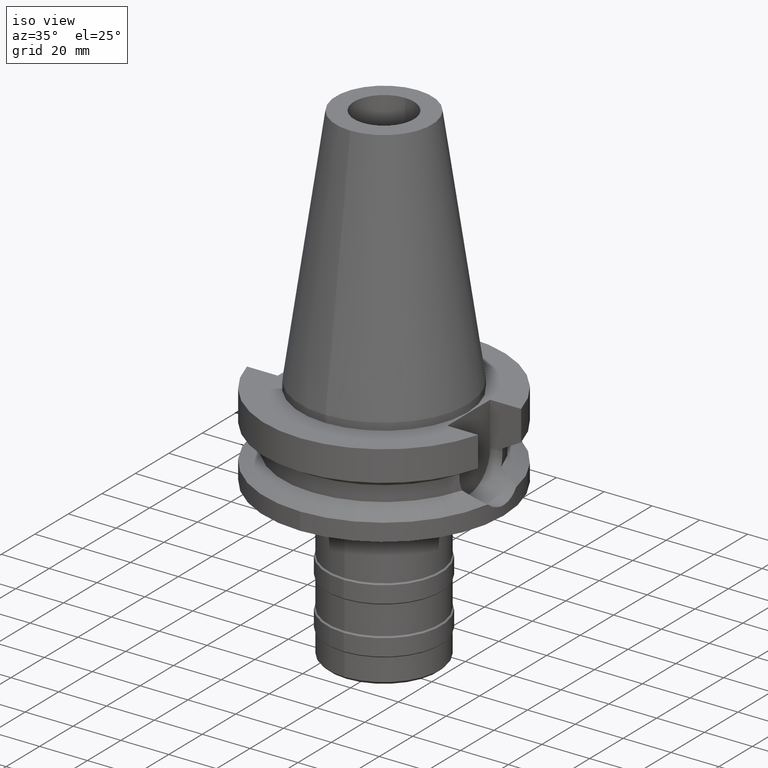
[diagram: clean part render]
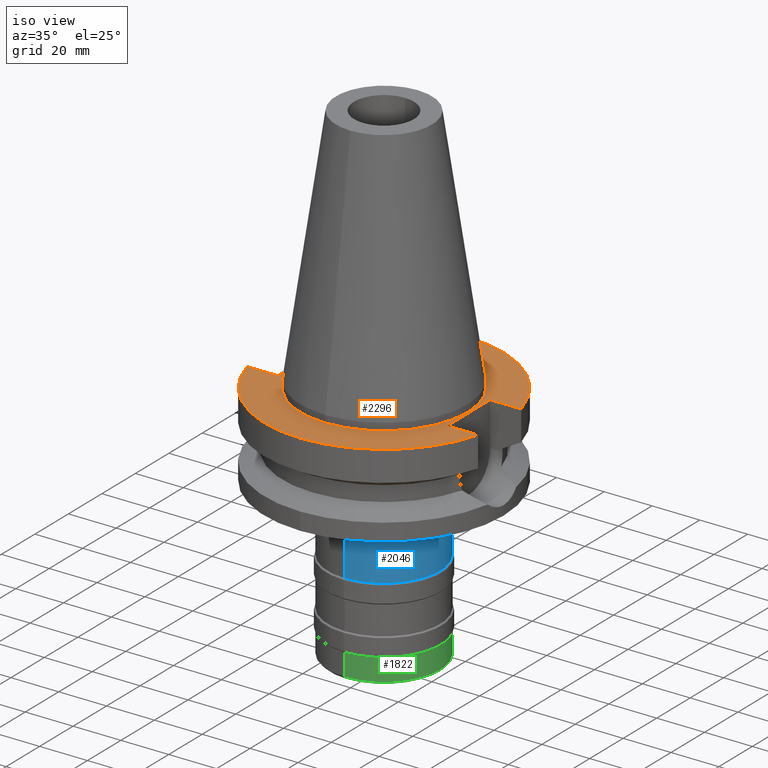
[diagram: same view with three faces highlighted in distinct colors, each labeled with its STEP entity id]
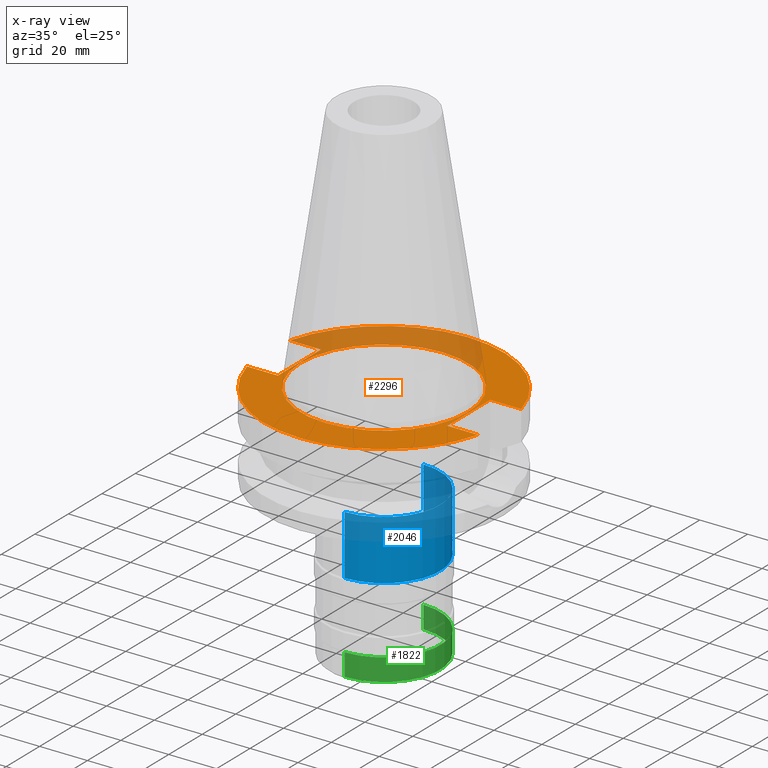
[diagram: x-ray of the same camera — body ghosted, the three highlighted faces saturated]
A machine part, iso view with three faces highlighted in distinct colors.
The next image is the same camera in x-ray (body ghosted, the three faces saturated) — at least one of them is partly hidden behind the body in this view.
Their STEP definitions:

[orange] entity #2296 — the highlighted planar face has unit normal (0, 0, -1).
#888=DIRECTION('',(1.E0,0.E0,0.E0));
#889=VECTOR('',#888,1.292057015392E1);
#890=CARTESIAN_POINT('',(3.54E1,1.285E1,-3.E0));
#891=LINE('',#890,#889);
#935=DIRECTION('',(0.E0,1.E0,0.E0));
#936=VECTOR('',#935,2.57E1);
#937=CARTESIAN_POINT('',(-3.54E1,-1.285E1,-3.E0));
#938=LINE('',#937,#936);
#942=DIRECTION('',(-1.E0,0.E0,0.E0));
#943=VECTOR('',#942,1.292057015392E1);
#944=CARTESIAN_POINT('',(-3.54E1,1.285E1,-3.E0));
#945=LINE('',#944,#943);
#949=CARTESIAN_POINT('',(0.E0,2.597965719711E-14,-3.E0));
#950=DIRECTION('',(0.E0,0.E0,-1.E0));
#951=DIRECTION('',(-9.664114030784E-1,2.57E-1,0.E0));
#952=AXIS2_PLACEMENT_3D('',#949,#950,#951);
#957=CARTESIAN_POINT('',(0.E0,2.597965719711E-14,-3.E0));
#958=DIRECTION('',(0.E0,0.E0,-1.E0));
#959=DIRECTION('',(0.E0,1.E0,0.E0));
#960=AXIS2_PLACEMENT_3D('',#957,#958,#959);
#965=DIRECTION('',(0.E0,-1.E0,0.E0));
#966=VECTOR('',#965,2.57E1);
#967=CARTESIAN_POINT('',(3.54E1,1.285E1,-3.E0));
#968=LINE('',#967,#966);
#972=DIRECTION('',(1.E0,0.E0,0.E0));
#973=VECTOR('',#972,1.292057015392E1);
#974=CARTESIAN_POINT('',(3.54E1,-1.285E1,-3.E0));
#975=LINE('',#974,#973);
#979=CARTESIAN_POINT('',(0.E0,2.597965719711E-14,-3.E0));
#980=DIRECTION('',(0.E0,0.E0,-1.E0));
#981=DIRECTION('',(9.664114030784E-1,-2.57E-1,0.E0));
#982=AXIS2_PLACEMENT_3D('',#979,#980,#981);
#987=CARTESIAN_POINT('',(0.E0,2.597965719711E-14,-3.E0));
#988=DIRECTION('',(0.E0,0.E0,-1.E0));
#989=DIRECTION('',(0.E0,-1.E0,0.E0));
#990=AXIS2_PLACEMENT_3D('',#987,#988,#989);
#995=CARTESIAN_POINT('',(0.E0,2.597965719711E-14,-3.E0));
#996=DIRECTION('',(0.E0,0.E0,1.E0));
#997=DIRECTION('',(0.E0,-1.E0,0.E0));
#998=AXIS2_PLACEMENT_3D('',#995,#996,#997);
#1003=CARTESIAN_POINT('',(0.E0,2.597965719711E-14,-3.E0));
#1004=DIRECTION('',(0.E0,0.E0,1.E0));
#1005=DIRECTION('',(0.E0,1.E0,0.E0));
#1006=AXIS2_PLACEMENT_3D('',#1003,#1004,#1005);
#1041=DIRECTION('',(-1.E0,0.E0,0.E0));
#1042=VECTOR('',#1041,1.292057015392E1);
#1043=CARTESIAN_POINT('',(-3.54E1,-1.285E1,-3.E0));
#1044=LINE('',#1043,#1042);
#1431=CARTESIAN_POINT('',(-3.54E1,-1.285E1,-3.E0));
#1432=VERTEX_POINT('',#1431);
#1433=CARTESIAN_POINT('',(-4.832057015392E1,-1.285E1,-3.E0));
#1434=VERTEX_POINT('',#1433);
#1437=CARTESIAN_POINT('',(-3.54E1,1.285E1,-3.E0));
#1438=VERTEX_POINT('',#1437);
#1439=CARTESIAN_POINT('',(-4.832057015392E1,1.285E1,-3.E0));
#1440=VERTEX_POINT('',#1439);
#1441=CARTESIAN_POINT('',(-1.065814103640E-14,5.E1,-3.E0));
#1442=CARTESIAN_POINT('',(4.832057015392E1,1.285E1,-3.E0));
#1443=VERTEX_POINT('',#1441);
#1444=VERTEX_POINT('',#1442);
#1445=CARTESIAN_POINT('',(3.54E1,1.285E1,-3.E0));
#1446=VERTEX_POINT('',#1445);
#1447=CARTESIAN_POINT('',(3.54E1,-1.285E1,-3.E0));
#1448=VERTEX_POINT('',#1447);
#1449=CARTESIAN_POINT('',(4.832057015392E1,-1.285E1,-3.E0));
#1450=VERTEX_POINT('',#1449);
#1451=CARTESIAN_POINT('',(1.065814103640E-14,-5.E1,-3.E0));
#1452=VERTEX_POINT('',#1451);
#1453=CARTESIAN_POINT('',(0.E0,-3.4925E1,-3.E0));
#1454=CARTESIAN_POINT('',(0.E0,3.4925E1,-3.E0));
#1455=VERTEX_POINT('',#1453);
#1456=VERTEX_POINT('',#1454);
#2265=CARTESIAN_POINT('',(0.E0,1.187907395173E-14,-3.E0));
#2266=DIRECTION('',(0.E0,0.E0,-1.E0));
#2267=DIRECTION('',(0.E0,-1.E0,0.E0));
#2268=AXIS2_PLACEMENT_3D('',#2265,#2266,#2267);
#2269=PLANE('',#2268);
#2271=ORIENTED_EDGE('',*,*,#2270,.T.);
#2273=ORIENTED_EDGE('',*,*,#2272,.T.);
#2275=ORIENTED_EDGE('',*,*,#2274,.T.);
#2277=ORIENTED_EDGE('',*,*,#2276,.T.);
#2278=ORIENTED_EDGE('',*,*,#2241,.F.);
#2279=ORIENTED_EDGE('',*,*,#2255,.T.);
#2281=ORIENTED_EDGE('',*,*,#2280,.T.);
#2283=ORIENTED_EDGE('',*,*,#2282,.T.);
#2285=ORIENTED_EDGE('',*,*,#2284,.T.);
#2287=ORIENTED_EDGE('',*,*,#2286,.F.);
#2288=EDGE_LOOP('',(#2271,#2273,#2275,#2277,#2278,#2279,#2281,#2283,#2285,
#2287));
#2289=FACE_OUTER_BOUND('',#2288,.F.);
#2291=ORIENTED_EDGE('',*,*,#2290,.T.);
#2293=ORIENTED_EDGE('',*,*,#2292,.T.);
#2294=EDGE_LOOP('',(#2291,#2293));
#2295=FACE_BOUND('',#2294,.F.);
#953=CIRCLE('',#952,5.E1);
#961=CIRCLE('',#960,5.E1);
#983=CIRCLE('',#982,5.E1);
#991=CIRCLE('',#990,5.E1);
#999=CIRCLE('',#998,3.4925E1);
#1007=CIRCLE('',#1006,3.4925E1);
#2241=EDGE_CURVE('',#1446,#1444,#891,.T.);
#2255=EDGE_CURVE('',#1446,#1448,#968,.T.);
#2270=EDGE_CURVE('',#1432,#1438,#938,.T.);
#2272=EDGE_CURVE('',#1438,#1440,#945,.T.);
#2274=EDGE_CURVE('',#1440,#1443,#953,.T.);
#2276=EDGE_CURVE('',#1443,#1444,#961,.T.);
#2280=EDGE_CURVE('',#1448,#1450,#975,.T.);
#2282=EDGE_CURVE('',#1450,#1452,#983,.T.);
#2284=EDGE_CURVE('',#1452,#1434,#991,.T.);
#2286=EDGE_CURVE('',#1432,#1434,#1044,.T.);
#2290=EDGE_CURVE('',#1455,#1456,#999,.T.);
#2292=EDGE_CURVE('',#1456,#1455,#1007,.T.);
#2296=ADVANCED_FACE('',(#2289,#2295),#2269,.F.);

[blue] entity #2046 — the highlighted cylindrical surface (partial cylindrical patch) has radius 23.5 mm, axis along (0, 0, -1).
#563=CARTESIAN_POINT('',(0.E0,0.E0,-6.6E1));
#564=DIRECTION('',(0.E0,0.E0,1.E0));
#565=DIRECTION('',(0.E0,-1.E0,0.E0));
#566=AXIS2_PLACEMENT_3D('',#563,#564,#565);
#594=DIRECTION('',(0.E0,0.E0,-1.E0));
#595=VECTOR('',#594,2.5E1);
#596=CARTESIAN_POINT('',(0.E0,-2.35E1,-4.1E1));
#597=LINE('',#596,#595);
#601=DIRECTION('',(0.E0,0.E0,-1.E0));
#602=VECTOR('',#601,2.5E1);
#603=CARTESIAN_POINT('',(0.E0,2.35E1,-4.1E1));
#604=LINE('',#603,#602);
#615=CARTESIAN_POINT('',(0.E0,0.E0,-4.1E1));
#616=DIRECTION('',(0.E0,0.E0,-1.E0));
#617=DIRECTION('',(0.E0,1.E0,0.E0));
#618=AXIS2_PLACEMENT_3D('',#615,#616,#617);
#1368=CARTESIAN_POINT('',(0.E0,2.35E1,-6.6E1));
#1369=VERTEX_POINT('',#1368);
#1370=CARTESIAN_POINT('',(0.E0,-2.35E1,-6.6E1));
#1371=VERTEX_POINT('',#1370);
#1372=CARTESIAN_POINT('',(0.E0,2.35E1,-4.1E1));
#1373=VERTEX_POINT('',#1372);
#1374=CARTESIAN_POINT('',(0.E0,-2.35E1,-4.1E1));
#1375=VERTEX_POINT('',#1374);
#2034=CARTESIAN_POINT('',(0.E0,2.597965719711E-14,1.1214E2));
#2035=DIRECTION('',(0.E0,0.E0,-1.E0));
#2036=DIRECTION('',(0.E0,-1.E0,0.E0));
#2037=AXIS2_PLACEMENT_3D('',#2034,#2035,#2036);
#2038=CYLINDRICAL_SURFACE('',#2037,2.35E1);
#2039=ORIENTED_EDGE('',*,*,#2024,.T.);
#2040=ORIENTED_EDGE('',*,*,#2001,.F.);
#2041=ORIENTED_EDGE('',*,*,#2028,.F.);
#2043=ORIENTED_EDGE('',*,*,#2042,.F.);
#2044=EDGE_LOOP('',(#2039,#2040,#2041,#2043));
#2045=FACE_OUTER_BOUND('',#2044,.F.);
#567=CIRCLE('',#566,2.35E1);
#619=CIRCLE('',#618,2.35E1);
#2001=EDGE_CURVE('',#1371,#1369,#567,.T.);
#2024=EDGE_CURVE('',#1373,#1369,#604,.T.);
#2028=EDGE_CURVE('',#1375,#1371,#597,.T.);
#2042=EDGE_CURVE('',#1373,#1375,#619,.T.);
#2046=ADVANCED_FACE('',(#2045),#2038,.T.);

[green] entity #1822 — the highlighted cylindrical surface (partial cylindrical patch) has radius 23.5 mm, axis along (0, 0, -1).
#331=CARTESIAN_POINT('',(0.E0,0.E0,-1.033285E2));
#332=DIRECTION('',(0.E0,0.E0,1.E0));
#333=DIRECTION('',(0.E0,-1.E0,0.E0));
#334=AXIS2_PLACEMENT_3D('',#331,#332,#333);
#354=DIRECTION('',(0.E0,0.E0,-1.E0));
#355=VECTOR('',#354,9.3285E0);
#356=CARTESIAN_POINT('',(0.E0,-2.35E1,-9.4E1));
#357=LINE('',#356,#355);
#361=DIRECTION('',(0.E0,0.E0,-1.E0));
#362=VECTOR('',#361,9.3285E0);
#363=CARTESIAN_POINT('',(0.E0,2.35E1,-9.4E1));
#364=LINE('',#363,#362);
#375=CARTESIAN_POINT('',(0.E0,0.E0,-9.4E1));
#376=DIRECTION('',(0.E0,0.E0,-1.E0));
#377=DIRECTION('',(0.E0,1.E0,0.E0));
#378=AXIS2_PLACEMENT_3D('',#375,#376,#377);
#1336=CARTESIAN_POINT('',(0.E0,2.35E1,-1.033285E2));
#1337=VERTEX_POINT('',#1336);
#1338=CARTESIAN_POINT('',(0.E0,-2.35E1,-1.033285E2));
#1339=VERTEX_POINT('',#1338);
#1340=CARTESIAN_POINT('',(0.E0,2.35E1,-9.4E1));
#1341=VERTEX_POINT('',#1340);
#1342=CARTESIAN_POINT('',(0.E0,-2.35E1,-9.4E1));
#1343=VERTEX_POINT('',#1342);
#1810=CARTESIAN_POINT('',(0.E0,2.597965719711E-14,1.1214E2));
#1811=DIRECTION('',(0.E0,0.E0,-1.E0));
#1812=DIRECTION('',(0.E0,-1.E0,0.E0));
#1813=AXIS2_PLACEMENT_3D('',#1810,#1811,#1812);
#1814=CYLINDRICAL_SURFACE('',#1813,2.35E1);
#1815=ORIENTED_EDGE('',*,*,#1800,.T.);
#1816=ORIENTED_EDGE('',*,*,#1777,.F.);
#1817=ORIENTED_EDGE('',*,*,#1804,.F.);
#1819=ORIENTED_EDGE('',*,*,#1818,.F.);
#1820=EDGE_LOOP('',(#1815,#1816,#1817,#1819));
#1821=FACE_OUTER_BOUND('',#1820,.F.);
#335=CIRCLE('',#334,2.35E1);
#379=CIRCLE('',#378,2.35E1);
#1777=EDGE_CURVE('',#1339,#1337,#335,.T.);
#1800=EDGE_CURVE('',#1341,#1337,#364,.T.);
#1804=EDGE_CURVE('',#1343,#1339,#357,.T.);
#1818=EDGE_CURVE('',#1341,#1343,#379,.T.);
#1822=ADVANCED_FACE('',(#1821),#1814,.T.);